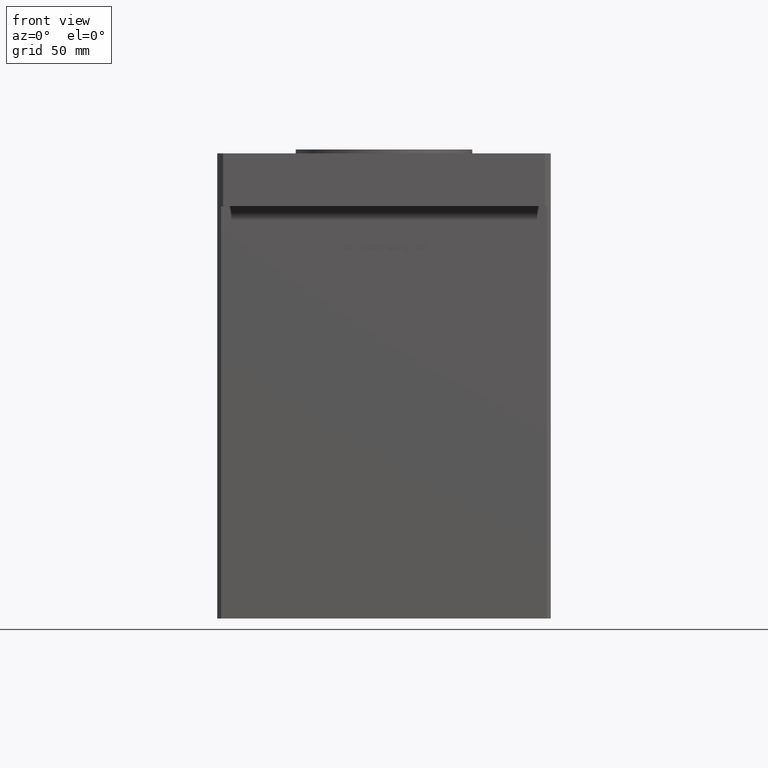
[diagram: clean part render]
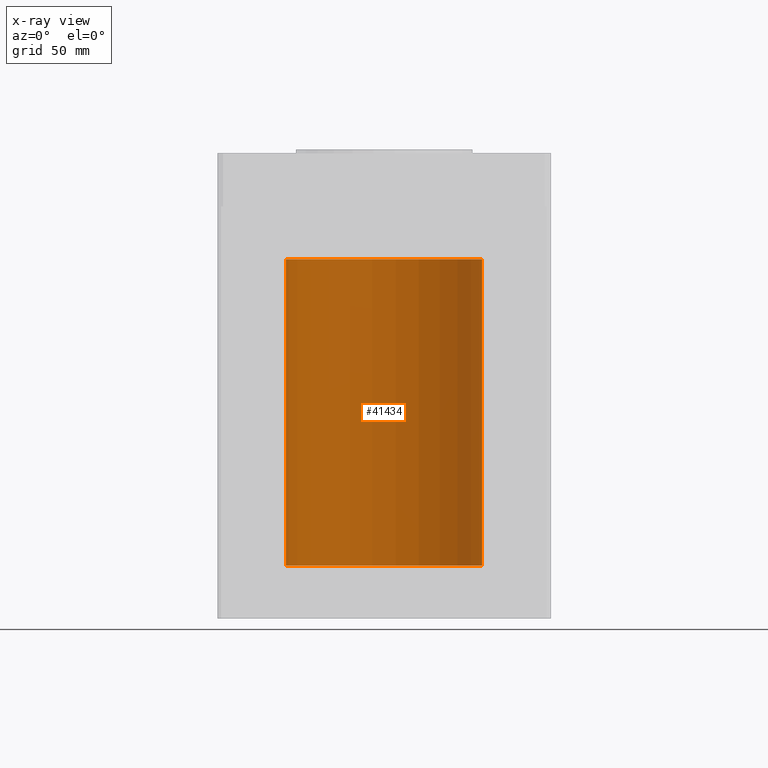
[diagram: x-ray — body ghosted, one internal face saturated and labeled with its STEP entity id]
A machine part, front view, then the same camera in x-ray: the body is ghosted and one INTERNAL B-rep face — a face not visible from any outside direction — is saturated and labeled: STEP entity #41434.
In plain terms, the highlighted cylindrical surface (partial cylindrical patch) has radius 50 mm, axis along (-0, -0, -1).
Its self-contained STEP definition (entity closure, byte-faithful):
#350 = CARTESIAN_POINT ( 'NONE',  ( -50.00000000000000000, 0.000000000000000000, 0.000000000000000000 ) ) ;
#373 = EDGE_LOOP ( 'NONE', ( #28742, #52784, #4739, #52256 ) ) ;
#2602 = VERTEX_POINT ( 'NONE', #350 ) ;
#4015 = FACE_OUTER_BOUND ( 'NONE', #373, .T. ) ;
#4739 = ORIENTED_EDGE ( 'NONE', *, *, #5007, .T. ) ;
#5007 = EDGE_CURVE ( 'NONE', #32318, #2602, #31550, .T. ) ;
#5174 = CARTESIAN_POINT ( 'NONE',  ( -50.00000000000000000, 0.000000000000000000, 156.0000000000000000 ) ) ;
#7168 = EDGE_CURVE ( 'NONE', #14332, #2602, #36039, .T. ) ;
#8132 = DIRECTION ( 'NONE',  ( -0.000000000000000000, 0.000000000000000000, 1.000000000000000000 ) ) ;
#9096 = AXIS2_PLACEMENT_3D ( 'NONE', #37059, #11596, #28105 ) ;
#9666 = CIRCLE ( 'NONE', #52878, 50.00000000000000000 ) ;
#11596 = DIRECTION ( 'NONE',  ( -0.000000000000000000, -0.000000000000000000, -1.000000000000000000 ) ) ;
#13226 = DIRECTION ( 'NONE',  ( 1.000000000000000000, 0.000000000000000000, 0.000000000000000000 ) ) ;
#13539 = AXIS2_PLACEMENT_3D ( 'NONE', #42476, #29739, #13226 ) ;
#14332 = VERTEX_POINT ( 'NONE', #51177 ) ;
#16876 = CARTESIAN_POINT ( 'NONE',  ( 50.00000000000000000, 6.123233995736766085E-15, 156.0000000000000000 ) ) ;
#17497 = EDGE_CURVE ( 'NONE', #27172, #32318, #9666, .T. ) ;
#24639 = CARTESIAN_POINT ( 'NONE',  ( 0.000000000000000000, 0.000000000000000000, 156.0000000000000000 ) ) ;
#24701 = VECTOR ( 'NONE', #52142, 1000.000000000000000 ) ;
#27172 = VERTEX_POINT ( 'NONE', #16876 ) ;
#28105 = DIRECTION ( 'NONE',  ( -1.000000000000000000, 0.000000000000000000, 0.000000000000000000 ) ) ;
#28742 = ORIENTED_EDGE ( 'NONE', *, *, #51875, .F. ) ;
#29724 = LINE ( 'NONE', #34332, #34333 ) ;
#29739 = DIRECTION ( 'NONE',  ( -0.000000000000000000, 0.000000000000000000, 1.000000000000000000 ) ) ;
#31550 = LINE ( 'NONE', #35630, #24701 ) ;
#32318 = VERTEX_POINT ( 'NONE', #5174 ) ;
#34065 = DIRECTION ( 'NONE',  ( -0.000000000000000000, -0.000000000000000000, -1.000000000000000000 ) ) ;
#34332 = CARTESIAN_POINT ( 'NONE',  ( 50.00000000000000000, 6.123233995736766085E-15, 156.0000000000000000 ) ) ;
#34333 = VECTOR ( 'NONE', #34065, 1000.000000000000000 ) ;
#35630 = CARTESIAN_POINT ( 'NONE',  ( -50.00000000000000000, 0.000000000000000000, 156.0000000000000000 ) ) ;
#36039 = CIRCLE ( 'NONE', #13539, 50.00000000000000000 ) ;
#37059 = CARTESIAN_POINT ( 'NONE',  ( 0.000000000000000000, 0.000000000000000000, 156.0000000000000000 ) ) ;
#37384 = DIRECTION ( 'NONE',  ( 1.000000000000000000, 0.000000000000000000, 0.000000000000000000 ) ) ;
#40844 = CYLINDRICAL_SURFACE ( 'NONE', #9096, 50.00000000000000000 ) ;
#41434 = ADVANCED_FACE ( 'NONE', ( #4015 ), #40844, .F. ) ;
#42476 = CARTESIAN_POINT ( 'NONE',  ( 0.000000000000000000, 0.000000000000000000, 0.000000000000000000 ) ) ;
#51177 = CARTESIAN_POINT ( 'NONE',  ( 50.00000000000000000, 6.123233995736766085E-15, 0.000000000000000000 ) ) ;
#51875 = EDGE_CURVE ( 'NONE', #27172, #14332, #29724, .T. ) ;
#52142 = DIRECTION ( 'NONE',  ( -0.000000000000000000, -0.000000000000000000, -1.000000000000000000 ) ) ;
#52256 = ORIENTED_EDGE ( 'NONE', *, *, #7168, .F. ) ;
#52784 = ORIENTED_EDGE ( 'NONE', *, *, #17497, .T. ) ;
#52878 = AXIS2_PLACEMENT_3D ( 'NONE', #24639, #8132, #37384 ) ;